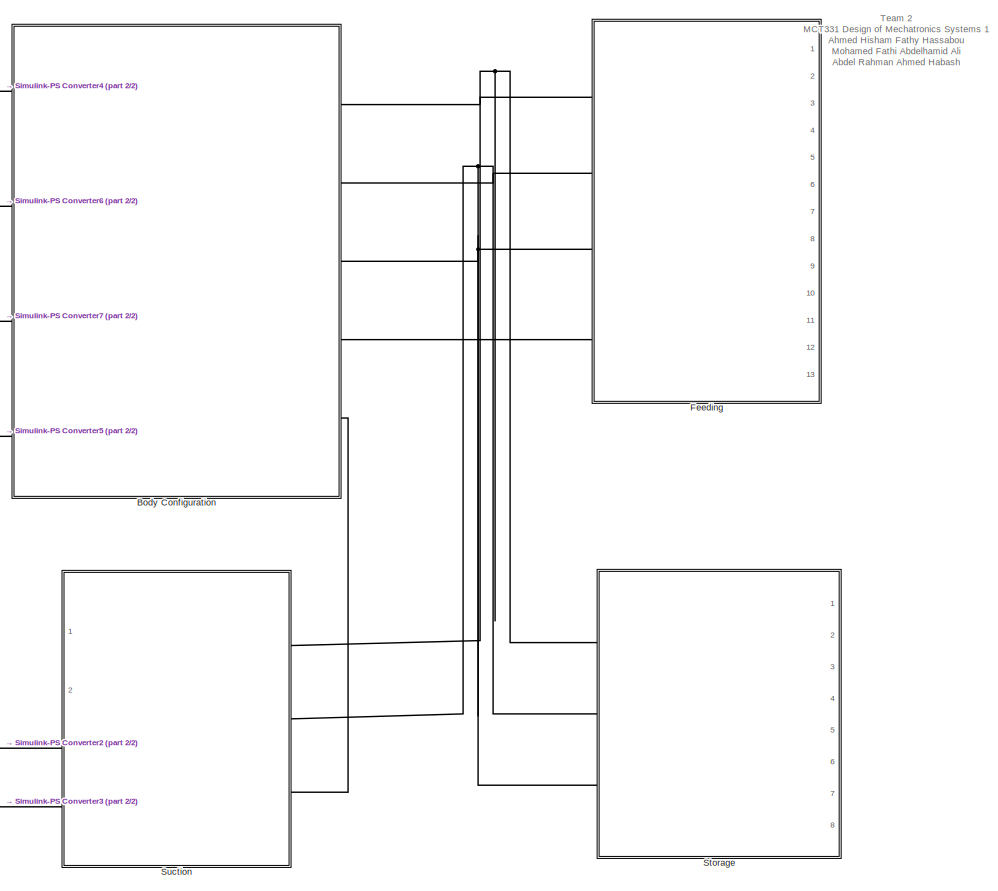
[diagram: root canvas - part 1/2, right side, full height]
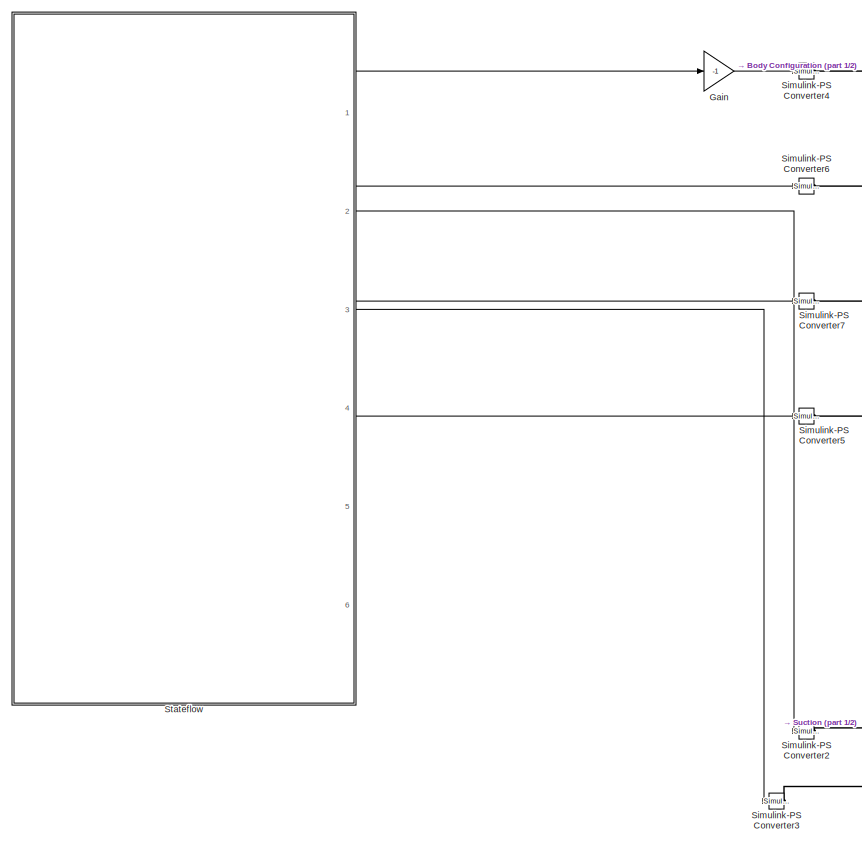
[diagram: root canvas - part 2/2, left side, full height]
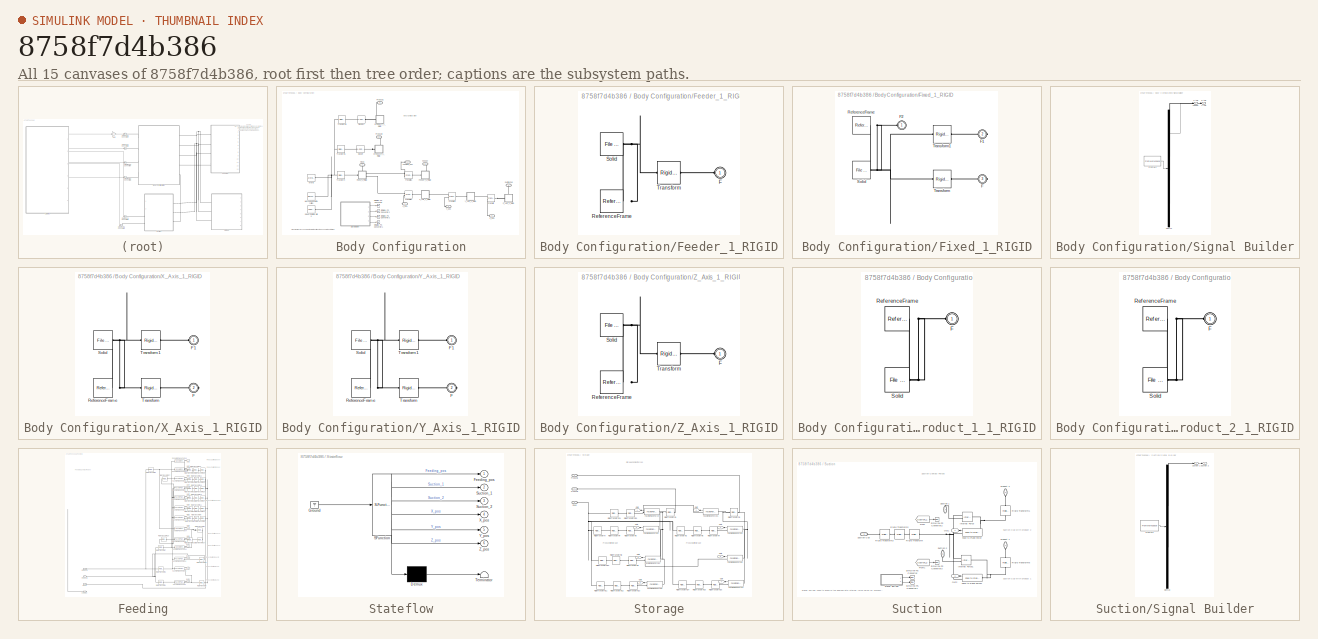
[diagram: thumbnail index - all 15 canvases of the model, root first then tree order]
MODEL slx_8758f7d4b386
KIND model
CONFIG AbsTol = auto
CONFIG EnableMultiTasking = off
CONFIG FixedStep = 0.01
CONFIG MaxStep = auto
CONFIG MinStep = auto
CONFIG RelTol = 1e-3
CONFIG SampleTimeConstraint = Unconstrained
CONFIG SolverName = ode23t
CONFIG StartTime = 0.0
CONFIG StopTime = 60
WORKSPACE source: external: MATLAB File  (data not in archive)
BLOCK [SubSystem] Body Configuration
  Ports = [0, 0, 0, 0, 0, 4, 5]
  RequestExecContextInheritance = off
BLOCK [PMIOPort] Body Configuration/Feeder
  Port = 8
  Side = Right
BLOCK [SubSystem] Body Configuration/Feeder_1_RIGID
  Ports = [0, 0, 0, 0, 0, 1]
  RequestExecContextInheritance = off
BLOCK [PMIOPort] Body Configuration/Feeder_1_RIGID/F
  Side = Left
BLOCK [Reference] Body Configuration/Feeder_1_RIGID/ReferenceFrame  REF=sm_lib/Frames and
Transforms/Reference
Frame
  Ports = [0, 0, 0, 0, 0, 0, 1]
  SourceBlock = sm_lib/Frames and\nTransforms/Reference\nFrame
  SourceProductBaseCode = MS
  SourceType = Reference\nFrame
BLOCK [Reference] Body Configuration/Feeder_1_RIGID/Solid  REF=sm_lib/Body Elements/File Solid
  Ports = [0, 0, 0, 0, 0, 0, 1]
  SourceBlock = sm_lib/Body Elements/File Solid
  SourceProductBaseCode = MS
  SourceType = File Solid
BLOCK [Reference] Body Configuration/Feeder_1_RIGID/Transform  REF=sm_lib/Frames and
Transforms/Rigid
Transform
  Ports = [0, 0, 0, 0, 0, 1, 1]
  SourceBlock = sm_lib/Frames and\nTransforms/Rigid\nTransform
  SourceProductBaseCode = MS
  SourceType = Rigid\nTransform
BLOCK [PMIOPort] Body Configuration/Feeding_pos
  Side = Left
BLOCK [PMIOPort] Body Configuration/Fixed
  Port = 7
  Side = Right
BLOCK [SubSystem] Body Configuration/Fixed_1_RIGID
  Ports = [0, 0, 0, 0, 0, 1, 2]
  RequestExecContextInheritance = off
BLOCK [PMIOPort] Body Configuration/Fixed_1_RIGID/F
  Port = 3
  Side = Right
BLOCK [PMIOPort] Body Configuration/Fixed_1_RIGID/F1
  Port = 2
  Side = Right
BLOCK [PMIOPort] Body Configuration/Fixed_1_RIGID/F2
  Side = Left
BLOCK [Reference] Body Configuration/Fixed_1_RIGID/ReferenceFrame  REF=sm_lib/Frames and
Transforms/Reference
Frame
  Ports = [0, 0, 0, 0, 0, 0, 1]
  SourceBlock = sm_lib/Frames and\nTransforms/Reference\nFrame
  SourceProductBaseCode = MS
  SourceType = Reference\nFrame
BLOCK [Reference] Body Configuration/Fixed_1_RIGID/Solid  REF=sm_lib/Body Elements/File Solid
  Ports = [0, 0, 0, 0, 0, 0, 1]
  SourceBlock = sm_lib/Body Elements/File Solid
  SourceProductBaseCode = MS
  SourceType = File Solid
BLOCK [Reference] Body Configuration/Fixed_1_RIGID/Transform  REF=sm_lib/Frames and
Transforms/Rigid
Transform
  Ports = [0, 0, 0, 0, 0, 1, 1]
  SourceBlock = sm_lib/Frames and\nTransforms/Rigid\nTransform
  SourceProductBaseCode = MS
  SourceType = Rigid\nTransform
BLOCK [Reference] Body Configuration/Fixed_1_RIGID/Transform1  REF=sm_lib/Frames and
Transforms/Rigid
Transform
  Ports = [0, 0, 0, 0, 0, 1, 1]
  SourceBlock = sm_lib/Frames and\nTransforms/Rigid\nTransform
  SourceProductBaseCode = MS
  SourceType = Rigid\nTransform
BLOCK [Reference] Body Configuration/MechanismConfiguration  REF=sm_lib/Utilities/Mechanism
Configuration
  Ports = [0, 0, 0, 0, 0, 0, 1]
  SourceBlock = sm_lib/Utilities/Mechanism\nConfiguration
  SourceProductBaseCode = MS
  SourceType = Mechanism\nConfiguration
BLOCK [Reference] Body Configuration/Prismatic  REF=sm_lib/Joints/Prismatic
Joint
  Ports = [0, 0, 0, 0, 0, 2, 1]
  SourceBlock = sm_lib/Joints/Prismatic\nJoint
  SourceProductBaseCode = MS
  SourceType = Prismatic\nJoint
BLOCK [Reference] Body Configuration/Prismatic1  REF=sm_lib/Joints/Prismatic
Joint
  Ports = [0, 0, 0, 0, 0, 2, 1]
  SourceBlock = sm_lib/Joints/Prismatic\nJoint
  SourceProductBaseCode = MS
  SourceType = Prismatic\nJoint
BLOCK [Reference] Body Configuration/Prismatic2  REF=sm_lib/Joints/Prismatic
Joint
  Ports = [0, 0, 0, 0, 0, 2, 1]
  SourceBlock = sm_lib/Joints/Prismatic\nJoint
  SourceProductBaseCode = MS
  SourceType = Prismatic\nJoint
BLOCK [Reference] Body Configuration/Prismatic3  REF=sm_lib/Joints/Prismatic
Joint
  Ports = [0, 0, 0, 0, 0, 2, 1]
  SourceBlock = sm_lib/Joints/Prismatic\nJoint
  SourceProductBaseCode = MS
  SourceType = Prismatic\nJoint
BLOCK [PMIOPort] Body Configuration/Product 1
  Port = 5
  Side = Right
BLOCK [PMIOPort] Body Configuration/Product 2
  Port = 6
  Side = Right
BLOCK [SubSystem] Body Configuration/Signal Builder
  ClipboardFcn = sigbuilder_block('clipboard');
  CloseFcn = sigbuilder_block('close');
  Commented = on
  ContinueFcn = sigbuilder_block('continue');
  CopyFcn = sigbuilder_block('copy');
  DeleteFcn = sigbuilder_block('delete');
  LoadFcn = sigbuilder_block('load');
  MaskHideContents = on
  ModelCloseFcn = sigbuilder_block('modelClose');
  NameChangeFcn = sigbuilder_block('namechange');
  OpenFcn = sigbuilder_block('open',[571.8 36.6 574.8 510.6 ]);
  PauseFcn = sigbuilder_block('pause');
  Ports = [0, 4]
  PreSaveFcn = sigbuilder_block('preSave');
  RequestExecContextInheritance = off
  StartFcn = sigbuilder_block('start');
  StopFcn = sigbuilder_block('stop');
  Tag = STV Subsys
BLOCK [Demux] Body Configuration/Signal Builder/Demux
  DisplayOption = none
  Ports = [1, 4]
  Tag = STV Demux
BLOCK [Outport] Body Configuration/Signal Builder/Feeder
  Tag = STV Outport
BLOCK [FromWorkspace] Body Configuration/Signal Builder/FromWs
  Tag = STV FromWs
  VariableName = tuvar
BLOCK [Outport] Body Configuration/Signal Builder/X-Axis
  Port = 2
  Tag = STV Outport
BLOCK [Outport] Body Configuration/Signal Builder/Y-Axis
  Port = 3
  Tag = STV Outport
BLOCK [Outport] Body Configuration/Signal Builder/Z-Axis
  Port = 4
  Tag = STV Outport
BLOCK [Reference] Body Configuration/Simulink-PS Converter  REF=nesl_utility/Simulink-PS
Converter
  Commented = on
  Ports = [1, 0, 0, 0, 0, 0, 1]
  SourceBlock = nesl_utility/Simulink-PS\nConverter
  SourceProductBaseCode = PW,SS
  SourceType = Simulink-PS\nConverter
BLOCK [Reference] Body Configuration/Simulink-PS Converter1  REF=nesl_utility/Simulink-PS
Converter
  Commented = on
  Ports = [1, 0, 0, 0, 0, 0, 1]
  SourceBlock = nesl_utility/Simulink-PS\nConverter
  SourceProductBaseCode = PW,SS
  SourceType = Simulink-PS\nConverter
BLOCK [Reference] Body Configuration/Simulink-PS Converter2  REF=nesl_utility/Simulink-PS
Converter
  Commented = on
  Ports = [1, 0, 0, 0, 0, 0, 1]
  SourceBlock = nesl_utility/Simulink-PS\nConverter
  SourceProductBaseCode = PW,SS
  SourceType = Simulink-PS\nConverter
BLOCK [Reference] Body Configuration/Simulink-PS Converter3  REF=nesl_utility/Simulink-PS
Converter
  Commented = on
  Ports = [1, 0, 0, 0, 0, 0, 1]
  SourceBlock = nesl_utility/Simulink-PS\nConverter
  SourceProductBaseCode = PW,SS
  SourceType = Simulink-PS\nConverter
BLOCK [Reference] Body Configuration/SixDOF  REF=sm_lib/Joints/6-DOF Joint
  Ports = [0, 0, 0, 0, 0, 1, 1]
  SourceBlock = sm_lib/Joints/6-DOF Joint
  SourceProductBaseCode = MS
  SourceType = 6-DOF Joint
BLOCK [Reference] Body Configuration/SixDOF1  REF=sm_lib/Joints/6-DOF Joint
  Ports = [0, 0, 0, 0, 0, 1, 1]
  SourceBlock = sm_lib/Joints/6-DOF Joint
  SourceProductBaseCode = MS
  SourceType = 6-DOF Joint
BLOCK [Reference] Body Configuration/Solver Configuration  REF=nesl_utility/Solver
Configuration
  Ports = [0, 0, 0, 0, 0, 0, 1]
  SourceBlock = nesl_utility/Solver\nConfiguration
  SourceProductBaseCode = PW,SS
  SourceType = Solver\nConfiguration
BLOCK [PMIOPort] Body Configuration/Suction Cup
  Port = 9
  Side = Right
BLOCK [Reference] Body Configuration/Transform  REF=sm_lib/Frames and
Transforms/Rigid
Transform
  Ports = [0, 0, 0, 0, 0, 1, 1]
  SourceBlock = sm_lib/Frames and\nTransforms/Rigid\nTransform
  SourceProductBaseCode = MS
  SourceType = Rigid\nTransform
BLOCK [Reference] Body Configuration/Transform1  REF=sm_lib/Frames and
Transforms/Rigid
Transform
  Ports = [0, 0, 0, 0, 0, 1, 1]
  SourceBlock = sm_lib/Frames and\nTransforms/Rigid\nTransform
  SourceProductBaseCode = MS
  SourceType = Rigid\nTransform
BLOCK [Reference] Body Configuration/Transform2  REF=sm_lib/Frames and
Transforms/Rigid
Transform
  Ports = [0, 0, 0, 0, 0, 1, 1]
  SourceBlock = sm_lib/Frames and\nTransforms/Rigid\nTransform
  SourceProductBaseCode = MS
  SourceType = Rigid\nTransform
BLOCK [Reference] Body Configuration/World  REF=sm_lib/Frames and
Transforms/World Frame
  Ports = [0, 0, 0, 0, 0, 0, 1]
  SourceBlock = sm_lib/Frames and\nTransforms/World Frame
  SourceProductBaseCode = MS
  SourceType = World Frame
BLOCK [SubSystem] Body Configuration/X_Axis_1_RIGID
  Ports = [0, 0, 0, 0, 0, 1, 1]
  RequestExecContextInheritance = off
BLOCK [PMIOPort] Body Configuration/X_Axis_1_RIGID/F
  Port = 2
  Side = Right
BLOCK [PMIOPort] Body Configuration/X_Axis_1_RIGID/F1
  Side = Left
BLOCK [Reference] Body Configuration/X_Axis_1_RIGID/ReferenceFrame  REF=sm_lib/Frames and
Transforms/Reference
Frame
  Ports = [0, 0, 0, 0, 0, 0, 1]
  SourceBlock = sm_lib/Frames and\nTransforms/Reference\nFrame
  SourceProductBaseCode = MS
  SourceType = Reference\nFrame
BLOCK [Reference] Body Configuration/X_Axis_1_RIGID/Solid  REF=sm_lib/Body Elements/File Solid
  Ports = [0, 0, 0, 0, 0, 0, 1]
  SourceBlock = sm_lib/Body Elements/File Solid
  SourceProductBaseCode = MS
  SourceType = File Solid
BLOCK [Reference] Body Configuration/X_Axis_1_RIGID/Transform  REF=sm_lib/Frames and
Transforms/Rigid
Transform
  Ports = [0, 0, 0, 0, 0, 1, 1]
  SourceBlock = sm_lib/Frames and\nTransforms/Rigid\nTransform
  SourceProductBaseCode = MS
  SourceType = Rigid\nTransform
BLOCK [Reference] Body Configuration/X_Axis_1_RIGID/Transform1  REF=sm_lib/Frames and
Transforms/Rigid
Transform
  Ports = [0, 0, 0, 0, 0, 1, 1]
  SourceBlock = sm_lib/Frames and\nTransforms/Rigid\nTransform
  SourceProductBaseCode = MS
  SourceType = Rigid\nTransform
BLOCK [PMIOPort] Body Configuration/X_pos
  Port = 2
  Side = Left
BLOCK [SubSystem] Body Configuration/Y_Axis_1_RIGID
  Ports = [0, 0, 0, 0, 0, 1, 1]
  RequestExecContextInheritance = off
BLOCK [PMIOPort] Body Configuration/Y_Axis_1_RIGID/F
  Port = 2
  Side = Right
BLOCK [PMIOPort] Body Configuration/Y_Axis_1_RIGID/F1
  Side = Left
BLOCK [Reference] Body Configuration/Y_Axis_1_RIGID/ReferenceFrame  REF=sm_lib/Frames and
Transforms/Reference
Frame
  Ports = [0, 0, 0, 0, 0, 0, 1]
  SourceBlock = sm_lib/Frames and\nTransforms/Reference\nFrame
  SourceProductBaseCode = MS
  SourceType = Reference\nFrame
BLOCK [Reference] Body Configuration/Y_Axis_1_RIGID/Solid  REF=sm_lib/Body Elements/File Solid
  Ports = [0, 0, 0, 0, 0, 0, 1]
  SourceBlock = sm_lib/Body Elements/File Solid
  SourceProductBaseCode = MS
  SourceType = File Solid
BLOCK [Reference] Body Configuration/Y_Axis_1_RIGID/Transform  REF=sm_lib/Frames and
Transforms/Rigid
Transform
  Ports = [0, 0, 0, 0, 0, 1, 1]
  SourceBlock = sm_lib/Frames and\nTransforms/Rigid\nTransform
  SourceProductBaseCode = MS
  SourceType = Rigid\nTransform
BLOCK [Reference] Body Configuration/Y_Axis_1_RIGID/Transform1  REF=sm_lib/Frames and
Transforms/Rigid
Transform
  Ports = [0, 0, 0, 0, 0, 1, 1]
  SourceBlock = sm_lib/Frames and\nTransforms/Rigid\nTransform
  SourceProductBaseCode = MS
  SourceType = Rigid\nTransform
BLOCK [PMIOPort] Body Configuration/Y_pos
  Port = 3
  Side = Left
BLOCK [SubSystem] Body Configuration/Z_Axis_1_RIGID
  Ports = [0, 0, 0, 0, 0, 1]
  RequestExecContextInheritance = off
BLOCK [PMIOPort] Body Configuration/Z_Axis_1_RIGID/F
  Side = Left
BLOCK [Reference] Body Configuration/Z_Axis_1_RIGID/ReferenceFrame  REF=sm_lib/Frames and
Transforms/Reference
Frame
  Ports = [0, 0, 0, 0, 0, 0, 1]
  SourceBlock = sm_lib/Frames and\nTransforms/Reference\nFrame
  SourceProductBaseCode = MS
  SourceType = Reference\nFrame
BLOCK [Reference] Body Configuration/Z_Axis_1_RIGID/Solid  REF=sm_lib/Body Elements/File Solid
  Ports = [0, 0, 0, 0, 0, 0, 1]
  SourceBlock = sm_lib/Body Elements/File Solid
  SourceProductBaseCode = MS
  SourceType = File Solid
BLOCK [Reference] Body Configuration/Z_Axis_1_RIGID/Transform  REF=sm_lib/Frames and
Transforms/Rigid
Transform
  Ports = [0, 0, 0, 0, 0, 1, 1]
  SourceBlock = sm_lib/Frames and\nTransforms/Rigid\nTransform
  SourceProductBaseCode = MS
  SourceType = Rigid\nTransform
BLOCK [PMIOPort] Body Configuration/Z_pos
  Port = 4
  Side = Left
BLOCK [SubSystem] Body Configuration/product_1_1_RIGID
  Ports = [0, 0, 0, 0, 0, 1]
  RequestExecContextInheritance = off
BLOCK [PMIOPort] Body Configuration/product_1_1_RIGID/F
  Side = Left
BLOCK [Reference] Body Configuration/product_1_1_RIGID/ReferenceFrame  REF=sm_lib/Frames and
Transforms/Reference
Frame
  Ports = [0, 0, 0, 0, 0, 0, 1]
  SourceBlock = sm_lib/Frames and\nTransforms/Reference\nFrame
  SourceProductBaseCode = MS
  SourceType = Reference\nFrame
BLOCK [Reference] Body Configuration/product_1_1_RIGID/Solid  REF=sm_lib/Body Elements/File Solid
  Ports = [0, 0, 0, 0, 0, 0, 1]
  SourceBlock = sm_lib/Body Elements/File Solid
  SourceProductBaseCode = MS
  SourceType = File Solid
BLOCK [SubSystem] Body Configuration/product_2_1_RIGID
  Ports = [0, 0, 0, 0, 0, 1]
  RequestExecContextInheritance = off
BLOCK [PMIOPort] Body Configuration/product_2_1_RIGID/F
  Side = Left
BLOCK [Reference] Body Configuration/product_2_1_RIGID/ReferenceFrame  REF=sm_lib/Frames and
Transforms/Reference
Frame
  Ports = [0, 0, 0, 0, 0, 0, 1]
  SourceBlock = sm_lib/Frames and\nTransforms/Reference\nFrame
  SourceProductBaseCode = MS
  SourceType = Reference\nFrame
BLOCK [Reference] Body Configuration/product_2_1_RIGID/Solid  REF=sm_lib/Body Elements/File Solid
  Ports = [0, 0, 0, 0, 0, 0, 1]
  SourceBlock = sm_lib/Body Elements/File Solid
  SourceProductBaseCode = MS
  SourceType = File Solid
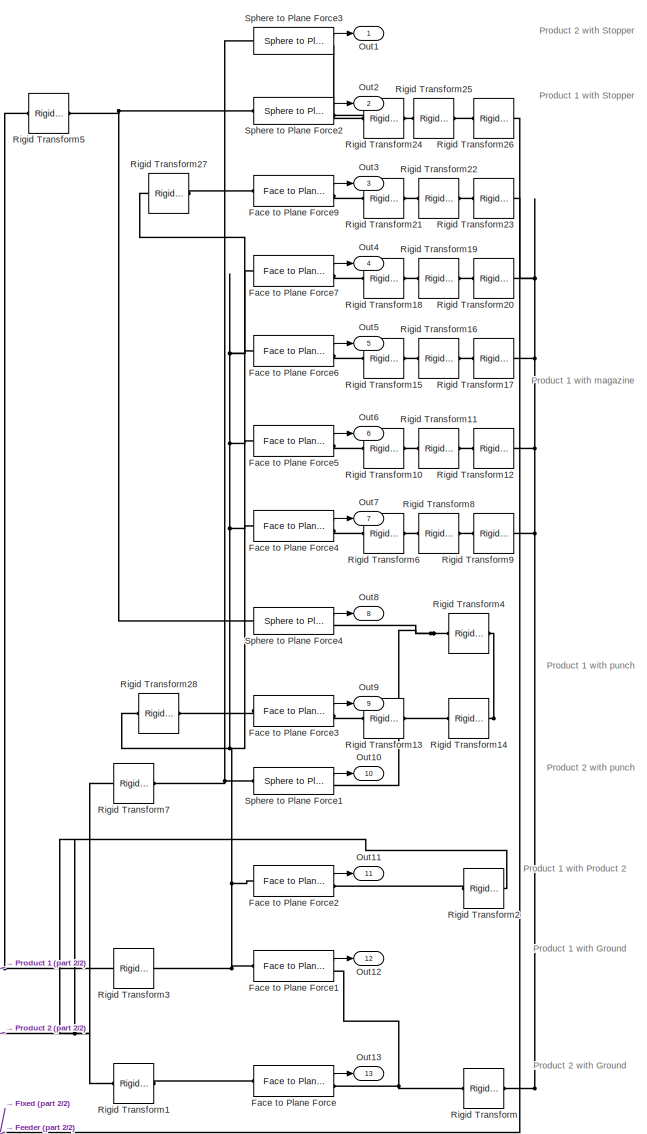
[diagram: Feeding - part 1/2, right side, full height]
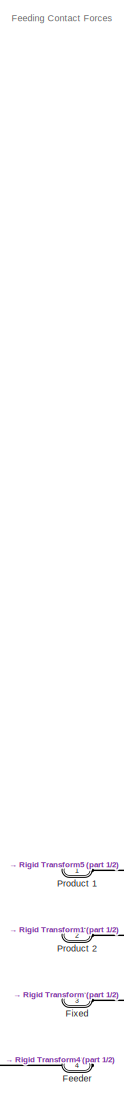
[diagram: Feeding - part 2/2, left side, full height]
BLOCK [SubSystem] Feeding
  Ports = [0, 13, 0, 0, 0, 4]
  RequestExecContextInheritance = off
BLOCK [Reference] Feeding/Face to Plane Force  REF=Contact_Forces_Lib/3D/Composite
Forces/Face to Plane Force
  Ports = [0, 1, 0, 0, 0, 1, 1]
  SourceBlock = Contact_Forces_Lib/3D/Composite\nForces/Face to Plane Force
  SourceProductName = Simscape Multibody Contact Forces Library
  SourceType = Face to Plane Force
BLOCK [Reference] Feeding/Face to Plane Force1  REF=Contact_Forces_Lib/3D/Composite
Forces/Face to Plane Force
  Ports = [0, 1, 0, 0, 0, 1, 1]
  SourceBlock = Contact_Forces_Lib/3D/Composite\nForces/Face to Plane Force
  SourceProductName = Simscape Multibody Contact Forces Library
  SourceType = Face to Plane Force
BLOCK [Reference] Feeding/Face to Plane Force2  REF=Contact_Forces_Lib/3D/Composite
Forces/Face to Plane Force
  Ports = [0, 1, 0, 0, 0, 1, 1]
  SourceBlock = Contact_Forces_Lib/3D/Composite\nForces/Face to Plane Force
  SourceProductName = Simscape Multibody Contact Forces Library
  SourceType = Face to Plane Force
BLOCK [Reference] Feeding/Face to Plane Force3  REF=Contact_Forces_Lib/3D/Composite
Forces/Face to Plane Force
  Ports = [0, 1, 0, 0, 0, 1, 1]
  SourceBlock = Contact_Forces_Lib/3D/Composite\nForces/Face to Plane Force
  SourceProductName = Simscape Multibody Contact Forces Library
  SourceType = Face to Plane Force
BLOCK [Reference] Feeding/Face to Plane Force4  REF=Contact_Forces_Lib/3D/Composite
Forces/Face to Plane Force
  Ports = [0, 1, 0, 0, 0, 1, 1]
  SourceBlock = Contact_Forces_Lib/3D/Composite\nForces/Face to Plane Force
  SourceProductName = Simscape Multibody Contact Forces Library
  SourceType = Face to Plane Force
BLOCK [Reference] Feeding/Face to Plane Force5  REF=Contact_Forces_Lib/3D/Composite
Forces/Face to Plane Force
  Ports = [0, 1, 0, 0, 0, 1, 1]
  SourceBlock = Contact_Forces_Lib/3D/Composite\nForces/Face to Plane Force
  SourceProductName = Simscape Multibody Contact Forces Library
  SourceType = Face to Plane Force
BLOCK [Reference] Feeding/Face to Plane Force6  REF=Contact_Forces_Lib/3D/Composite
Forces/Face to Plane Force
  Ports = [0, 1, 0, 0, 0, 1, 1]
  SourceBlock = Contact_Forces_Lib/3D/Composite\nForces/Face to Plane Force
  SourceProductName = Simscape Multibody Contact Forces Library
  SourceType = Face to Plane Force
BLOCK [Reference] Feeding/Face to Plane Force7  REF=Contact_Forces_Lib/3D/Composite
Forces/Face to Plane Force
  Ports = [0, 1, 0, 0, 0, 1, 1]
  SourceBlock = Contact_Forces_Lib/3D/Composite\nForces/Face to Plane Force
  SourceProductName = Simscape Multibody Contact Forces Library
  SourceType = Face to Plane Force
BLOCK [Reference] Feeding/Face to Plane Force9  REF=Contact_Forces_Lib/3D/Composite
Forces/Face to Plane Force
  Ports = [0, 1, 0, 0, 0, 1, 1]
  SourceBlock = Contact_Forces_Lib/3D/Composite\nForces/Face to Plane Force
  SourceProductName = Simscape Multibody Contact Forces Library
  SourceType = Face to Plane Force
BLOCK [PMIOPort] Feeding/Feeder
  Port = 4
  Side = Left
BLOCK [PMIOPort] Feeding/Fixed
  Port = 3
  Side = Left
BLOCK [Outport] Feeding/Out1
BLOCK [Outport] Feeding/Out10
  Port = 10
BLOCK [Outport] Feeding/Out11
  Port = 11
BLOCK [Outport] Feeding/Out12
  Port = 12
BLOCK [Outport] Feeding/Out13
  Port = 13
BLOCK [Outport] Feeding/Out2
  Port = 2
BLOCK [Outport] Feeding/Out3
  Port = 3
BLOCK [Outport] Feeding/Out4
  Port = 4
BLOCK [Outport] Feeding/Out5
  Port = 5
BLOCK [Outport] Feeding/Out6
  Port = 6
BLOCK [Outport] Feeding/Out7
  Port = 7
BLOCK [Outport] Feeding/Out8
  Port = 8
BLOCK [Outport] Feeding/Out9
  Port = 9
BLOCK [PMIOPort] Feeding/Product 1
  Side = Left
BLOCK [PMIOPort] Feeding/Product 2
  Port = 2
  Side = Left
BLOCK [Reference] Feeding/Rigid Transform  REF=sm_lib/Frames and
Transforms/Rigid
Transform
  Ports = [0, 0, 0, 0, 0, 1, 1]
  SourceBlock = sm_lib/Frames and\nTransforms/Rigid\nTransform
  SourceProductBaseCode = MS
  SourceType = Rigid\nTransform
BLOCK [Reference] Feeding/Rigid Transform1  REF=sm_lib/Frames and
Transforms/Rigid
Transform
  Ports = [0, 0, 0, 0, 0, 1, 1]
  SourceBlock = sm_lib/Frames and\nTransforms/Rigid\nTransform
  SourceProductBaseCode = MS
  SourceType = Rigid\nTransform
BLOCK [Reference] Feeding/Rigid Transform10  REF=sm_lib/Frames and
Transforms/Rigid
Transform
  Ports = [0, 0, 0, 0, 0, 1, 1]
  SourceBlock = sm_lib/Frames and\nTransforms/Rigid\nTransform
  SourceProductBaseCode = MS
  SourceType = Rigid\nTransform
BLOCK [Reference] Feeding/Rigid Transform11  REF=sm_lib/Frames and
Transforms/Rigid
Transform
  Ports = [0, 0, 0, 0, 0, 1, 1]
  SourceBlock = sm_lib/Frames and\nTransforms/Rigid\nTransform
  SourceProductBaseCode = MS
  SourceType = Rigid\nTransform
BLOCK [Reference] Feeding/Rigid Transform12  REF=sm_lib/Frames and
Transforms/Rigid
Transform
  Ports = [0, 0, 0, 0, 0, 1, 1]
  SourceBlock = sm_lib/Frames and\nTransforms/Rigid\nTransform
  SourceProductBaseCode = MS
  SourceType = Rigid\nTransform
BLOCK [Reference] Feeding/Rigid Transform13  REF=sm_lib/Frames and
Transforms/Rigid
Transform
  Ports = [0, 0, 0, 0, 0, 1, 1]
  SourceBlock = sm_lib/Frames and\nTransforms/Rigid\nTransform
  SourceProductBaseCode = MS
  SourceType = Rigid\nTransform
BLOCK [Reference] Feeding/Rigid Transform14  REF=sm_lib/Frames and
Transforms/Rigid
Transform
  Ports = [0, 0, 0, 0, 0, 1, 1]
  SourceBlock = sm_lib/Frames and\nTransforms/Rigid\nTransform
  SourceProductBaseCode = MS
  SourceType = Rigid\nTransform
BLOCK [Reference] Feeding/Rigid Transform15  REF=sm_lib/Frames and
Transforms/Rigid
Transform
  Ports = [0, 0, 0, 0, 0, 1, 1]
  SourceBlock = sm_lib/Frames and\nTransforms/Rigid\nTransform
  SourceProductBaseCode = MS
  SourceType = Rigid\nTransform
BLOCK [Reference] Feeding/Rigid Transform16  REF=sm_lib/Frames and
Transforms/Rigid
Transform
  Ports = [0, 0, 0, 0, 0, 1, 1]
  SourceBlock = sm_lib/Frames and\nTransforms/Rigid\nTransform
  SourceProductBaseCode = MS
  SourceType = Rigid\nTransform
BLOCK [Reference] Feeding/Rigid Transform17  REF=sm_lib/Frames and
Transforms/Rigid
Transform
  Ports = [0, 0, 0, 0, 0, 1, 1]
  SourceBlock = sm_lib/Frames and\nTransforms/Rigid\nTransform
  SourceProductBaseCode = MS
  SourceType = Rigid\nTransform
BLOCK [Reference] Feeding/Rigid Transform18  REF=sm_lib/Frames and
Transforms/Rigid
Transform
  Ports = [0, 0, 0, 0, 0, 1, 1]
  SourceBlock = sm_lib/Frames and\nTransforms/Rigid\nTransform
  SourceProductBaseCode = MS
  SourceType = Rigid\nTransform
BLOCK [Reference] Feeding/Rigid Transform19  REF=sm_lib/Frames and
Transforms/Rigid
Transform
  Ports = [0, 0, 0, 0, 0, 1, 1]
  SourceBlock = sm_lib/Frames and\nTransforms/Rigid\nTransform
  SourceProductBaseCode = MS
  SourceType = Rigid\nTransform
BLOCK [Reference] Feeding/Rigid Transform2  REF=sm_lib/Frames and
Transforms/Rigid
Transform
  Ports = [0, 0, 0, 0, 0, 1, 1]
  SourceBlock = sm_lib/Frames and\nTransforms/Rigid\nTransform
  SourceProductBaseCode = MS
  SourceType = Rigid\nTransform
BLOCK [Reference] Feeding/Rigid Transform20  REF=sm_lib/Frames and
Transforms/Rigid
Transform
  Ports = [0, 0, 0, 0, 0, 1, 1]
  SourceBlock = sm_lib/Frames and\nTransforms/Rigid\nTransform
  SourceProductBaseCode = MS
  SourceType = Rigid\nTransform
BLOCK [Reference] Feeding/Rigid Transform21  REF=sm_lib/Frames and
Transforms/Rigid
Transform
  Ports = [0, 0, 0, 0, 0, 1, 1]
  SourceBlock = sm_lib/Frames and\nTransforms/Rigid\nTransform
  SourceProductBaseCode = MS
  SourceType = Rigid\nTransform
BLOCK [Reference] Feeding/Rigid Transform22  REF=sm_lib/Frames and
Transforms/Rigid
Transform
  Ports = [0, 0, 0, 0, 0, 1, 1]
  SourceBlock = sm_lib/Frames and\nTransforms/Rigid\nTransform
  SourceProductBaseCode = MS
  SourceType = Rigid\nTransform
BLOCK [Reference] Feeding/Rigid Transform23  REF=sm_lib/Frames and
Transforms/Rigid
Transform
  Ports = [0, 0, 0, 0, 0, 1, 1]
  SourceBlock = sm_lib/Frames and\nTransforms/Rigid\nTransform
  SourceProductBaseCode = MS
  SourceType = Rigid\nTransform
BLOCK [Reference] Feeding/Rigid Transform24  REF=sm_lib/Frames and
Transforms/Rigid
Transform
  Ports = [0, 0, 0, 0, 0, 1, 1]
  SourceBlock = sm_lib/Frames and\nTransforms/Rigid\nTransform
  SourceProductBaseCode = MS
  SourceType = Rigid\nTransform
BLOCK [Reference] Feeding/Rigid Transform25  REF=sm_lib/Frames and
Transforms/Rigid
Transform
  Ports = [0, 0, 0, 0, 0, 1, 1]
  SourceBlock = sm_lib/Frames and\nTransforms/Rigid\nTransform
  SourceProductBaseCode = MS
  SourceType = Rigid\nTransform
BLOCK [Reference] Feeding/Rigid Transform26  REF=sm_lib/Frames and
Transforms/Rigid
Transform
  Ports = [0, 0, 0, 0, 0, 1, 1]
  SourceBlock = sm_lib/Frames and\nTransforms/Rigid\nTransform
  SourceProductBaseCode = MS
  SourceType = Rigid\nTransform
BLOCK [Reference] Feeding/Rigid Transform27  REF=sm_lib/Frames and
Transforms/Rigid
Transform
  Ports = [0, 0, 0, 0, 0, 1, 1]
  SourceBlock = sm_lib/Frames and\nTransforms/Rigid\nTransform
  SourceProductBaseCode = MS
  SourceType = Rigid\nTransform
BLOCK [Reference] Feeding/Rigid Transform28  REF=sm_lib/Frames and
Transforms/Rigid
Transform
  Ports = [0, 0, 0, 0, 0, 1, 1]
  SourceBlock = sm_lib/Frames and\nTransforms/Rigid\nTransform
  SourceProductBaseCode = MS
  SourceType = Rigid\nTransform
BLOCK [Reference] Feeding/Rigid Transform3  REF=sm_lib/Frames and
Transforms/Rigid
Transform
  Ports = [0, 0, 0, 0, 0, 1, 1]
  SourceBlock = sm_lib/Frames and\nTransforms/Rigid\nTransform
  SourceProductBaseCode = MS
  SourceType = Rigid\nTransform
BLOCK [Reference] Feeding/Rigid Transform4  REF=sm_lib/Frames and
Transforms/Rigid
Transform
  Ports = [0, 0, 0, 0, 0, 1, 1]
  SourceBlock = sm_lib/Frames and\nTransforms/Rigid\nTransform
  SourceProductBaseCode = MS
  SourceType = Rigid\nTransform
BLOCK [Reference] Feeding/Rigid Transform5  REF=sm_lib/Frames and
Transforms/Rigid
Transform
  Ports = [0, 0, 0, 0, 0, 1, 1]
  SourceBlock = sm_lib/Frames and\nTransforms/Rigid\nTransform
  SourceProductBaseCode = MS
  SourceType = Rigid\nTransform
BLOCK [Reference] Feeding/Rigid Transform6  REF=sm_lib/Frames and
Transforms/Rigid
Transform
  Ports = [0, 0, 0, 0, 0, 1, 1]
  SourceBlock = sm_lib/Frames and\nTransforms/Rigid\nTransform
  SourceProductBaseCode = MS
  SourceType = Rigid\nTransform
BLOCK [Reference] Feeding/Rigid Transform7  REF=sm_lib/Frames and
Transforms/Rigid
Transform
  Ports = [0, 0, 0, 0, 0, 1, 1]
  SourceBlock = sm_lib/Frames and\nTransforms/Rigid\nTransform
  SourceProductBaseCode = MS
  SourceType = Rigid\nTransform
BLOCK [Reference] Feeding/Rigid Transform8  REF=sm_lib/Frames and
Transforms/Rigid
Transform
  Ports = [0, 0, 0, 0, 0, 1, 1]
  SourceBlock = sm_lib/Frames and\nTransforms/Rigid\nTransform
  SourceProductBaseCode = MS
  SourceType = Rigid\nTransform
BLOCK [Reference] Feeding/Rigid Transform9  REF=sm_lib/Frames and
Transforms/Rigid
Transform
  Ports = [0, 0, 0, 0, 0, 1, 1]
  SourceBlock = sm_lib/Frames and\nTransforms/Rigid\nTransform
  SourceProductBaseCode = MS
  SourceType = Rigid\nTransform
BLOCK [Reference] Feeding/Sphere to Plane Force1  REF=Contact_Forces_Lib/3D/Sphere to Plane Force
  Ports = [0, 1, 0, 0, 0, 1, 1]
  SourceBlock = Contact_Forces_Lib/3D/Sphere to Plane Force
  SourceProductName = Simscape Multibody Contact Forces Library
  SourceType = Sphere to Plane Force
BLOCK [Reference] Feeding/Sphere to Plane Force2  REF=Contact_Forces_Lib/3D/Sphere to Plane Force
  Ports = [0, 1, 0, 0, 0, 1, 1]
  SourceBlock = Contact_Forces_Lib/3D/Sphere to Plane Force
  SourceProductName = Simscape Multibody Contact Forces Library
  SourceType = Sphere to Plane Force
BLOCK [Reference] Feeding/Sphere to Plane Force3  REF=Contact_Forces_Lib/3D/Sphere to Plane Force
  Ports = [0, 1, 0, 0, 0, 1, 1]
  SourceBlock = Contact_Forces_Lib/3D/Sphere to Plane Force
  SourceProductName = Simscape Multibody Contact Forces Library
  SourceType = Sphere to Plane Force
BLOCK [Reference] Feeding/Sphere to Plane Force4  REF=Contact_Forces_Lib/3D/Sphere to Plane Force
  Ports = [0, 1, 0, 0, 0, 1, 1]
  SourceBlock = Contact_Forces_Lib/3D/Sphere to Plane Force
  SourceProductName = Simscape Multibody Contact Forces Library
  SourceType = Sphere to Plane Force
BLOCK [Gain] Gain
  Gain = -1
BLOCK [Reference] Simulink-PS Converter2  REF=nesl_utility/Simulink-PS
Converter
  Ports = [1, 0, 0, 0, 0, 0, 1]
  SourceBlock = nesl_utility/Simulink-PS\nConverter
  SourceProductBaseCode = PW,SS
  SourceType = Simulink-PS\nConverter
BLOCK [Reference] Simulink-PS Converter3  REF=nesl_utility/Simulink-PS
Converter
  Ports = [1, 0, 0, 0, 0, 0, 1]
  SourceBlock = nesl_utility/Simulink-PS\nConverter
  SourceProductBaseCode = PW,SS
  SourceType = Simulink-PS\nConverter
BLOCK [Reference] Simulink-PS Converter4  REF=nesl_utility/Simulink-PS
Converter
  Ports = [1, 0, 0, 0, 0, 0, 1]
  SourceBlock = nesl_utility/Simulink-PS\nConverter
  SourceProductBaseCode = PW,SS
  SourceType = Simulink-PS\nConverter
BLOCK [Reference] Simulink-PS Converter5  REF=nesl_utility/Simulink-PS
Converter
  Ports = [1, 0, 0, 0, 0, 0, 1]
  SourceBlock = nesl_utility/Simulink-PS\nConverter
  SourceProductBaseCode = PW,SS
  SourceType = Simulink-PS\nConverter
BLOCK [Reference] Simulink-PS Converter6  REF=nesl_utility/Simulink-PS
Converter
  Ports = [1, 0, 0, 0, 0, 0, 1]
  SourceBlock = nesl_utility/Simulink-PS\nConverter
  SourceProductBaseCode = PW,SS
  SourceType = Simulink-PS\nConverter
BLOCK [Reference] Simulink-PS Converter7  REF=nesl_utility/Simulink-PS
Converter
  Ports = [1, 0, 0, 0, 0, 0, 1]
  SourceBlock = nesl_utility/Simulink-PS\nConverter
  SourceProductBaseCode = PW,SS
  SourceType = Simulink-PS\nConverter
BLOCK [SubSystem] Stateflow
  ErrorFcn = Stateflow.Translate.translate
  PermitHierarchicalResolution = ExplicitOnly
  PortSchema = {"entries":[{"content":{"sides":[{"content":{"connectorIds":[]},"type":"ConnectorPlacement.EquallySpacedRectSide","uuid":"11e057d8-b98a-40fc-aa5b-a3e2f1141f71"},{"content":{"connectorIds":["Out1","Out4","Out5","Out6","Out2","Out3"],"side":"RIGHT"},"type":"ConnectorPlacement.EquallySpacedRectSide","uuid":"9ecd4d85-6e3e-41f9-b128-04d4f7efdb7d"},{"content":{"connectorIds":[],"side":"TOP"},"type":"Con...<+270ch>
  Ports = [0, 6]
  RequestExecContextInheritance = off
  SFBlockType = Chart
  TreatAsAtomicUnit = on
BLOCK [Demux] Stateflow/ Demux 
  Outputs = 1
  Ports = [1, 1]
BLOCK [Ground] Stateflow/ Ground 
BLOCK [S-Function] Stateflow/ SFunction 
  EnableBusSupport = on
  FunctionName = sf_sfun
  PortCounts = [1 7]
  Ports = [1, 7]
  SFcnIsStateOwnerBlock = off
  SFunctionDeploymentMode = off
  Tag = Stateflow S-Function 3
BLOCK [Terminator] Stateflow/ Terminator 
BLOCK [Outport] Stateflow/Feeding_pos
BLOCK [Outport] Stateflow/Suction_1
  Port = 2
BLOCK [Outport] Stateflow/Suction_2
  Port = 3
BLOCK [Outport] Stateflow/X_pos
  Port = 4
BLOCK [Outport] Stateflow/Y_pos
  Port = 5
BLOCK [Outport] Stateflow/Z_pos
  Port = 6
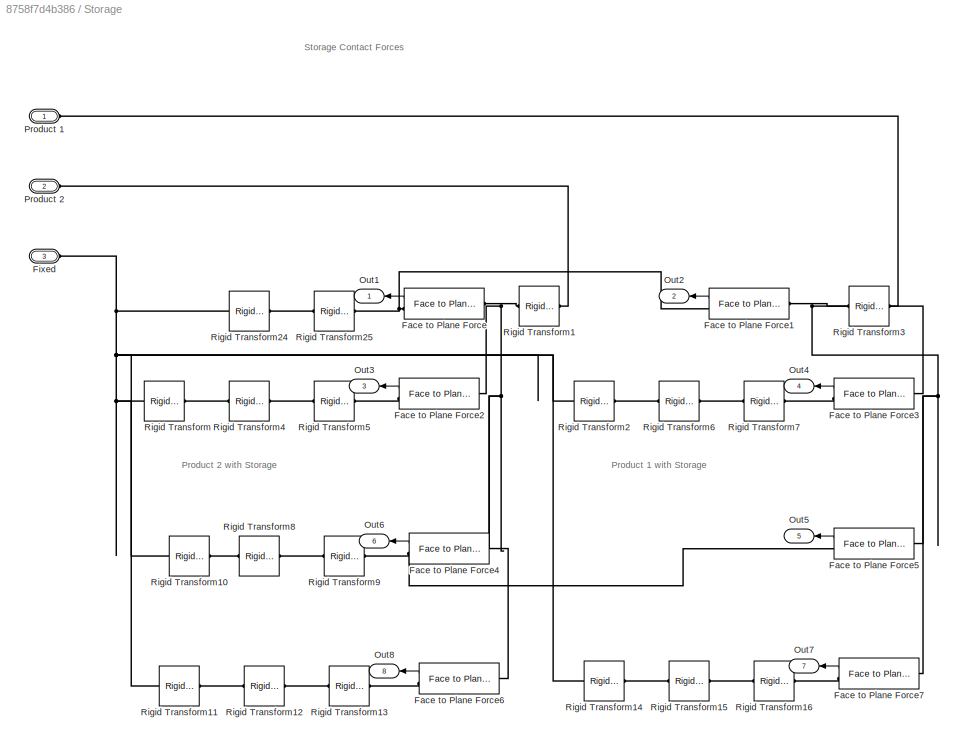
BLOCK [SubSystem] Storage
  Ports = [0, 8, 0, 0, 0, 3]
  RequestExecContextInheritance = off
BLOCK [Reference] Storage/Face to Plane Force  REF=Contact_Forces_Lib/3D/Composite
Forces/Face to Plane Force
  Ports = [0, 1, 0, 0, 0, 1, 1]
  SourceBlock = Contact_Forces_Lib/3D/Composite\nForces/Face to Plane Force
  SourceProductName = Simscape Multibody Contact Forces Library
  SourceType = Face to Plane Force
BLOCK [Reference] Storage/Face to Plane Force1  REF=Contact_Forces_Lib/3D/Composite
Forces/Face to Plane Force
  Ports = [0, 1, 0, 0, 0, 1, 1]
  SourceBlock = Contact_Forces_Lib/3D/Composite\nForces/Face to Plane Force
  SourceProductName = Simscape Multibody Contact Forces Library
  SourceType = Face to Plane Force
BLOCK [Reference] Storage/Face to Plane Force2  REF=Contact_Forces_Lib/3D/Composite
Forces/Face to Plane Force
  Ports = [0, 1, 0, 0, 0, 1, 1]
  SourceBlock = Contact_Forces_Lib/3D/Composite\nForces/Face to Plane Force
  SourceProductName = Simscape Multibody Contact Forces Library
  SourceType = Face to Plane Force
BLOCK [Reference] Storage/Face to Plane Force3  REF=Contact_Forces_Lib/3D/Composite
Forces/Face to Plane Force
  Ports = [0, 1, 0, 0, 0, 1, 1]
  SourceBlock = Contact_Forces_Lib/3D/Composite\nForces/Face to Plane Force
  SourceProductName = Simscape Multibody Contact Forces Library
  SourceType = Face to Plane Force
BLOCK [Reference] Storage/Face to Plane Force4  REF=Contact_Forces_Lib/3D/Composite
Forces/Face to Plane Force
  Ports = [0, 1, 0, 0, 0, 1, 1]
  SourceBlock = Contact_Forces_Lib/3D/Composite\nForces/Face to Plane Force
  SourceProductName = Simscape Multibody Contact Forces Library
  SourceType = Face to Plane Force
BLOCK [Reference] Storage/Face to Plane Force5  REF=Contact_Forces_Lib/3D/Composite
Forces/Face to Plane Force
  Ports = [0, 1, 0, 0, 0, 1, 1]
  SourceBlock = Contact_Forces_Lib/3D/Composite\nForces/Face to Plane Force
  SourceProductName = Simscape Multibody Contact Forces Library
  SourceType = Face to Plane Force
BLOCK [Reference] Storage/Face to Plane Force6  REF=Contact_Forces_Lib/3D/Composite
Forces/Face to Plane Force
  Ports = [0, 1, 0, 0, 0, 1, 1]
  SourceBlock = Contact_Forces_Lib/3D/Composite\nForces/Face to Plane Force
  SourceProductName = Simscape Multibody Contact Forces Library
  SourceType = Face to Plane Force
BLOCK [Reference] Storage/Face to Plane Force7  REF=Contact_Forces_Lib/3D/Composite
Forces/Face to Plane Force
  Ports = [0, 1, 0, 0, 0, 1, 1]
  SourceBlock = Contact_Forces_Lib/3D/Composite\nForces/Face to Plane Force
  SourceProductName = Simscape Multibody Contact Forces Library
  SourceType = Face to Plane Force
BLOCK [PMIOPort] Storage/Fixed
  Port = 3
  Side = Left
BLOCK [Outport] Storage/Out1
BLOCK [Outport] Storage/Out2
  Port = 2
BLOCK [Outport] Storage/Out3
  Port = 3
BLOCK [Outport] Storage/Out4
  Port = 4
BLOCK [Outport] Storage/Out5
  Port = 5
BLOCK [Outport] Storage/Out6
  Port = 6
BLOCK [Outport] Storage/Out7
  Port = 7
BLOCK [Outport] Storage/Out8
  Port = 8
BLOCK [PMIOPort] Storage/Product 1
  Side = Left
BLOCK [PMIOPort] Storage/Product 2
  Port = 2
  Side = Left
BLOCK [Reference] Storage/Rigid Transform  REF=sm_lib/Frames and
Transforms/Rigid
Transform
  Ports = [0, 0, 0, 0, 0, 1, 1]
  SourceBlock = sm_lib/Frames and\nTransforms/Rigid\nTransform
  SourceProductBaseCode = MS
  SourceType = Rigid\nTransform
BLOCK [Reference] Storage/Rigid Transform1  REF=sm_lib/Frames and
Transforms/Rigid
Transform
  Ports = [0, 0, 0, 0, 0, 1, 1]
  SourceBlock = sm_lib/Frames and\nTransforms/Rigid\nTransform
  SourceProductBaseCode = MS
  SourceType = Rigid\nTransform
BLOCK [Reference] Storage/Rigid Transform10  REF=sm_lib/Frames and
Transforms/Rigid
Transform
  Ports = [0, 0, 0, 0, 0, 1, 1]
  SourceBlock = sm_lib/Frames and\nTransforms/Rigid\nTransform
  SourceProductBaseCode = MS
  SourceType = Rigid\nTransform
BLOCK [Reference] Storage/Rigid Transform11  REF=sm_lib/Frames and
Transforms/Rigid
Transform
  Ports = [0, 0, 0, 0, 0, 1, 1]
  SourceBlock = sm_lib/Frames and\nTransforms/Rigid\nTransform
  SourceProductBaseCode = MS
  SourceType = Rigid\nTransform
BLOCK [Reference] Storage/Rigid Transform12  REF=sm_lib/Frames and
Transforms/Rigid
Transform
  Ports = [0, 0, 0, 0, 0, 1, 1]
  SourceBlock = sm_lib/Frames and\nTransforms/Rigid\nTransform
  SourceProductBaseCode = MS
  SourceType = Rigid\nTransform
BLOCK [Reference] Storage/Rigid Transform13  REF=sm_lib/Frames and
Transforms/Rigid
Transform
  Ports = [0, 0, 0, 0, 0, 1, 1]
  SourceBlock = sm_lib/Frames and\nTransforms/Rigid\nTransform
  SourceProductBaseCode = MS
  SourceType = Rigid\nTransform
BLOCK [Reference] Storage/Rigid Transform14  REF=sm_lib/Frames and
Transforms/Rigid
Transform
  Ports = [0, 0, 0, 0, 0, 1, 1]
  SourceBlock = sm_lib/Frames and\nTransforms/Rigid\nTransform
  SourceProductBaseCode = MS
  SourceType = Rigid\nTransform
BLOCK [Reference] Storage/Rigid Transform15  REF=sm_lib/Frames and
Transforms/Rigid
Transform
  Ports = [0, 0, 0, 0, 0, 1, 1]
  SourceBlock = sm_lib/Frames and\nTransforms/Rigid\nTransform
  SourceProductBaseCode = MS
  SourceType = Rigid\nTransform
BLOCK [Reference] Storage/Rigid Transform16  REF=sm_lib/Frames and
Transforms/Rigid
Transform
  Ports = [0, 0, 0, 0, 0, 1, 1]
  SourceBlock = sm_lib/Frames and\nTransforms/Rigid\nTransform
  SourceProductBaseCode = MS
  SourceType = Rigid\nTransform
BLOCK [Reference] Storage/Rigid Transform2  REF=sm_lib/Frames and
Transforms/Rigid
Transform
  Ports = [0, 0, 0, 0, 0, 1, 1]
  SourceBlock = sm_lib/Frames and\nTransforms/Rigid\nTransform
  SourceProductBaseCode = MS
  SourceType = Rigid\nTransform
BLOCK [Reference] Storage/Rigid Transform24  REF=sm_lib/Frames and
Transforms/Rigid
Transform
  Ports = [0, 0, 0, 0, 0, 1, 1]
  SourceBlock = sm_lib/Frames and\nTransforms/Rigid\nTransform
  SourceProductBaseCode = MS
  SourceType = Rigid\nTransform
BLOCK [Reference] Storage/Rigid Transform25  REF=sm_lib/Frames and
Transforms/Rigid
Transform
  Ports = [0, 0, 0, 0, 0, 1, 1]
  SourceBlock = sm_lib/Frames and\nTransforms/Rigid\nTransform
  SourceProductBaseCode = MS
  SourceType = Rigid\nTransform
BLOCK [Reference] Storage/Rigid Transform3  REF=sm_lib/Frames and
Transforms/Rigid
Transform
  Ports = [0, 0, 0, 0, 0, 1, 1]
  SourceBlock = sm_lib/Frames and\nTransforms/Rigid\nTransform
  SourceProductBaseCode = MS
  SourceType = Rigid\nTransform
BLOCK [Reference] Storage/Rigid Transform4  REF=sm_lib/Frames and
Transforms/Rigid
Transform
  Ports = [0, 0, 0, 0, 0, 1, 1]
  SourceBlock = sm_lib/Frames and\nTransforms/Rigid\nTransform
  SourceProductBaseCode = MS
  SourceType = Rigid\nTransform
BLOCK [Reference] Storage/Rigid Transform5  REF=sm_lib/Frames and
Transforms/Rigid
Transform
  Ports = [0, 0, 0, 0, 0, 1, 1]
  SourceBlock = sm_lib/Frames and\nTransforms/Rigid\nTransform
  SourceProductBaseCode = MS
  SourceType = Rigid\nTransform
BLOCK [Reference] Storage/Rigid Transform6  REF=sm_lib/Frames and
Transforms/Rigid
Transform
  Ports = [0, 0, 0, 0, 0, 1, 1]
  SourceBlock = sm_lib/Frames and\nTransforms/Rigid\nTransform
  SourceProductBaseCode = MS
  SourceType = Rigid\nTransform
BLOCK [Reference] Storage/Rigid Transform7  REF=sm_lib/Frames and
Transforms/Rigid
Transform
  Ports = [0, 0, 0, 0, 0, 1, 1]
  SourceBlock = sm_lib/Frames and\nTransforms/Rigid\nTransform
  SourceProductBaseCode = MS
  SourceType = Rigid\nTransform
BLOCK [Reference] Storage/Rigid Transform8  REF=sm_lib/Frames and
Transforms/Rigid
Transform
  Ports = [0, 0, 0, 0, 0, 1, 1]
  SourceBlock = sm_lib/Frames and\nTransforms/Rigid\nTransform
  SourceProductBaseCode = MS
  SourceType = Rigid\nTransform
BLOCK [Reference] Storage/Rigid Transform9  REF=sm_lib/Frames and
Transforms/Rigid
Transform
  Ports = [0, 0, 0, 0, 0, 1, 1]
  SourceBlock = sm_lib/Frames and\nTransforms/Rigid\nTransform
  SourceProductBaseCode = MS
  SourceType = Rigid\nTransform
BLOCK [SubSystem] Suction
  Ports = [0, 2, 0, 0, 0, 3, 2]
  RequestExecContextInheritance = off
BLOCK [Reference] Suction/Face to Plane Force  REF=Contact_Forces_Lib/3D/Composite
Forces/Face to Plane Force
  Ports = [0, 1, 0, 0, 0, 1, 1]
  SourceBlock = Contact_Forces_Lib/3D/Composite\nForces/Face to Plane Force
  SourceProductName = Simscape Multibody Contact Forces Library
  SourceType = Face to Plane Force
BLOCK [Reference] Suction/Face to Plane Force1  REF=Contact_Forces_Lib/3D/Composite
Forces/Face to Plane Force
  Ports = [0, 1, 0, 0, 0, 1, 1]
  SourceBlock = Contact_Forces_Lib/3D/Composite\nForces/Face to Plane Force
  SourceProductName = Simscape Multibody Contact Forces Library
  SourceType = Face to Plane Force
BLOCK [From] Suction/From
  Commented = on
  GotoTag = Suction_1
BLOCK [From] Suction/From1
  Commented = on
  GotoTag = Suction_2
BLOCK [Reference] Suction/Internal Force  REF=sm_lib/Forces and
Torques/Internal Force
  Ports = [0, 0, 0, 0, 0, 2, 1]
  SourceBlock = sm_lib/Forces and\nTorques/Internal Force
  SourceProductBaseCode = MS
  SourceType = Internal Force
BLOCK [Reference] Suction/Internal Force1  REF=sm_lib/Forces and
Torques/Internal Force
  Ports = [0, 0, 0, 0, 0, 2, 1]
  SourceBlock = sm_lib/Forces and\nTorques/Internal Force
  SourceProductBaseCode = MS
  SourceType = Internal Force
BLOCK [Outport] Suction/Out1
BLOCK [Outport] Suction/Out2
  Port = 2
BLOCK [PMIOPort] Suction/Product 1
  NameLocation = left
  Side = Left
BLOCK [PMIOPort] Suction/Product 2
  NameLocation = left
  Port = 2
  Side = Left
BLOCK [Reference] Suction/Rigid Transform  REF=sm_lib/Frames and
Transforms/Rigid
Transform
  Ports = [0, 0, 0, 0, 0, 1, 1]
  SourceBlock = sm_lib/Frames and\nTransforms/Rigid\nTransform
  SourceProductBaseCode = MS
  SourceType = Rigid\nTransform
BLOCK [Reference] Suction/Rigid Transform1  REF=sm_lib/Frames and
Transforms/Rigid
Transform
  NameLocation = left
  Ports = [0, 0, 0, 0, 0, 1, 1]
  SourceBlock = sm_lib/Frames and\nTransforms/Rigid\nTransform
  SourceProductBaseCode = MS
  SourceType = Rigid\nTransform
BLOCK [Reference] Suction/Rigid Transform2  REF=sm_lib/Frames and
Transforms/Rigid
Transform
  Ports = [0, 0, 0, 0, 0, 1, 1]
  SourceBlock = sm_lib/Frames and\nTransforms/Rigid\nTransform
  SourceProductBaseCode = MS
  SourceType = Rigid\nTransform
BLOCK [Reference] Suction/Rigid Transform3  REF=sm_lib/Frames and
Transforms/Rigid
Transform
  Ports = [0, 0, 0, 0, 0, 1, 1]
  SourceBlock = sm_lib/Frames and\nTransforms/Rigid\nTransform
  SourceProductBaseCode = MS
  SourceType = Rigid\nTransform
BLOCK [Reference] Suction/Rigid Transform5  REF=sm_lib/Frames and
Transforms/Rigid
Transform
  NameLocation = left
  Ports = [0, 0, 0, 0, 0, 1, 1]
  SourceBlock = sm_lib/Frames and\nTransforms/Rigid\nTransform
  SourceProductBaseCode = MS
  SourceType = Rigid\nTransform
BLOCK [SubSystem] Suction/Signal Builder
  ClipboardFcn = sigbuilder_block('clipboard');
  CloseFcn = sigbuilder_block('close');
  Commented = on
  ContinueFcn = sigbuilder_block('continue');
  CopyFcn = sigbuilder_block('copy');
  DeleteFcn = sigbuilder_block('delete');
  LoadFcn = sigbuilder_block('load');
  MaskHideContents = on
  ModelCloseFcn = sigbuilder_block('modelClose');
  NameChangeFcn = sigbuilder_block('namechange');
  OpenFcn = sigbuilder_block('open',[5.4 36 1141.2 516.6 ]);
  PauseFcn = sigbuilder_block('pause');
  Ports = [0, 2]
  PreSaveFcn = sigbuilder_block('preSave');
  RequestExecContextInheritance = off
  StartFcn = sigbuilder_block('start');
  StopFcn = sigbuilder_block('stop');
  Tag = STV Subsys
BLOCK [Demux] Suction/Signal Builder/Demux
  DisplayOption = none
  Outputs = 2
  Ports = [1, 2]
  Tag = STV Demux
BLOCK [FromWorkspace] Suction/Signal Builder/FromWs
  Tag = STV FromWs
  VariableName = tuvar
BLOCK [Outport] Suction/Signal Builder/Suction 1
  Tag = STV Outport
BLOCK [Outport] Suction/Signal Builder/Suction 2
  Port = 2
  Tag = STV Outport
BLOCK [Reference] Suction/Simulink-PS Converter  REF=nesl_utility/Simulink-PS
Converter
  Commented = on
  Ports = [1, 0, 0, 0, 0, 0, 1]
  SourceBlock = nesl_utility/Simulink-PS\nConverter
  SourceProductBaseCode = PW,SS
  SourceType = Simulink-PS\nConverter
BLOCK [Reference] Suction/Simulink-PS Converter1  REF=nesl_utility/Simulink-PS
Converter
  Commented = on
  Ports = [1, 0, 0, 0, 0, 0, 1]
  SourceBlock = nesl_utility/Simulink-PS\nConverter
  SourceProductBaseCode = PW,SS
  SourceType = Simulink-PS\nConverter
BLOCK [Reference] Suction/Simulink-PS Converter2  REF=nesl_utility/Simulink-PS
Converter
  Commented = on
  Ports = [1, 0, 0, 0, 0, 0, 1]
  SourceBlock = nesl_utility/Simulink-PS\nConverter
  SourceProductBaseCode = PW,SS
  SourceType = Simulink-PS\nConverter
BLOCK [Reference] Suction/Simulink-PS Converter3  REF=nesl_utility/Simulink-PS
Converter
  Commented = on
  Ports = [1, 0, 0, 0, 0, 0, 1]
  SourceBlock = nesl_utility/Simulink-PS\nConverter
  SourceProductBaseCode = PW,SS
  SourceType = Simulink-PS\nConverter
BLOCK [PMIOPort] Suction/Suction 1
  NameLocation = left
  Port = 4
  Side = Right
BLOCK [PMIOPort] Suction/Suction 2
  NameLocation = left
  Port = 5
  Side = Right
BLOCK [PMIOPort] Suction/Suction Cup
  Port = 3
  Side = Left
ANNOTATION (root): Team 2 MCT331 Design of Mechatronics Systems 1 Ahmed Hisham Fathy Hassabou Mohamed Fathi Abdelhamid Ali Abdel Rahman Ahmed Habash
ANNOTATION Body Configuration: Signal Builder for acquiring the joint positions to be used in the stateflow
ANNOTATION Body Configuration: Body Configuration
ANNOTATION Feeding: Feeding Contact Forces
ANNOTATION Feeding: Product 1 with Ground
ANNOTATION Feeding: Product 1 with Product 2
ANNOTATION Feeding: Product 1 with Stopper
ANNOTATION Feeding: Product 1 with magazine
ANNOTATION Feeding: Product 1 with punch
ANNOTATION Feeding: Product 2 with Ground
ANNOTATION Feeding: Product 2 with Stopper
ANNOTATION Feeding: Product 2 with punch
ANNOTATION Storage: Storage Contact Forces
ANNOTATION Storage: Product 1 with Storage
ANNOTATION Storage: Product 2 with Storage
ANNOTATION Suction: Signal builder used to acquire the appropriate internal force value for successful suction
ANNOTATION Suction: Suction Contact Forces
ANNOTATION Suction: Suction Cup with product 1
ANNOTATION Suction: Suction Cup with product 2
LINE Body Configuration/Signal Builder:1 -> Body Configuration/Simulink-PS Converter:1
LINE Body Configuration/Signal Builder:2 -> Body Configuration/Simulink-PS Converter2:1
LINE Body Configuration/Signal Builder:3 -> Body Configuration/Simulink-PS Converter3:1
LINE Body Configuration/Signal Builder:4 -> Body Configuration/Simulink-PS Converter1:1
LINE Feeding/Face to Plane Force1:1 -> Feeding/Out12:1
LINE Feeding/Face to Plane Force2:1 -> Feeding/Out11:1
LINE Feeding/Face to Plane Force3:1 -> Feeding/Out9:1
LINE Feeding/Face to Plane Force4:1 -> Feeding/Out7:1
LINE Feeding/Face to Plane Force5:1 -> Feeding/Out6:1
LINE Feeding/Face to Plane Force6:1 -> Feeding/Out5:1
LINE Feeding/Face to Plane Force7:1 -> Feeding/Out4:1
LINE Feeding/Face to Plane Force9:1 -> Feeding/Out3:1
LINE Feeding/Face to Plane Force:1 -> Feeding/Out13:1
LINE Feeding/Sphere to Plane Force1:1 -> Feeding/Out10:1
LINE Feeding/Sphere to Plane Force2:1 -> Feeding/Out2:1
LINE Feeding/Sphere to Plane Force3:1 -> Feeding/Out1:1
LINE Feeding/Sphere to Plane Force4:1 -> Feeding/Out8:1
LINE Gain:1 -> Simulink-PS Converter4:1
LINE Stateflow:1 -> Gain:1
LINE Stateflow:2 -> Simulink-PS Converter2:1
LINE Stateflow:3 -> Simulink-PS Converter3:1
LINE Stateflow:4 -> Simulink-PS Converter6:1
LINE Stateflow:5 -> Simulink-PS Converter7:1
LINE Stateflow:6 -> Simulink-PS Converter5:1
LINE Storage/Face to Plane Force1:1 -> Storage/Out2:1
LINE Storage/Face to Plane Force2:1 -> Storage/Out3:1
LINE Storage/Face to Plane Force3:1 -> Storage/Out4:1
LINE Storage/Face to Plane Force4:1 -> Storage/Out6:1
LINE Storage/Face to Plane Force5:1 -> Storage/Out5:1
LINE Storage/Face to Plane Force6:1 -> Storage/Out8:1
LINE Storage/Face to Plane Force7:1 -> Storage/Out7:1
LINE Storage/Face to Plane Force:1 -> Storage/Out1:1
LINE Suction/Face to Plane Force1:1 -> Suction/Out2:1
LINE Suction/Face to Plane Force:1 -> Suction/Out1:1
LINE Suction/From1:1 -> Suction/Simulink-PS Converter3:1
LINE Suction/From:1 -> Suction/Simulink-PS Converter2:1
LINE Suction/Signal Builder:1 -> Suction/Simulink-PS Converter:1
LINE Suction/Signal Builder:2 -> Suction/Simulink-PS Converter1:1
PNET net1: Body Configuration/Feeder:RConn1 -- Body Configuration/Feeder_1_RIGID:LConn1 -- Body Configuration/Prismatic3:RConn1
PLINE Body Configuration/Feeder_1_RIGID/F:RConn1 -- Body Configuration/Feeder_1_RIGID/Transform:RConn1
PNET net2: Body Configuration/Feeder_1_RIGID/ReferenceFrame:RConn1 -- Body Configuration/Feeder_1_RIGID/Solid:RConn1 -- Body Configuration/Feeder_1_RIGID/Transform:LConn1
PLINE Body Configuration/Feeding_pos:RConn1 -- Body Configuration/Prismatic3:LConn2
PNET net3: Body Configuration/Fixed:RConn1 -- Body Configuration/Fixed_1_RIGID:LConn1 -- Body Configuration/Transform:RConn1
PLINE Body Configuration/Fixed_1_RIGID/F1:RConn1 -- Body Configuration/Fixed_1_RIGID/Transform1:RConn1
PNET net4: Body Configuration/Fixed_1_RIGID/F2:RConn1 -- Body Configuration/Fixed_1_RIGID/ReferenceFrame:RConn1 -- Body Configuration/Fixed_1_RIGID/Solid:RConn1 -- Body Configuration/Fixed_1_RIGID/Transform1:LConn1 -- Body Configuration/Fixed_1_RIGID/Transform:LConn1
PLINE Body Configuration/Fixed_1_RIGID/F:RConn1 -- Body Configuration/Fixed_1_RIGID/Transform:RConn1
PLINE Body Configuration/Fixed_1_RIGID:RConn1 -- Body Configuration/Prismatic3:LConn1
PLINE Body Configuration/Fixed_1_RIGID:RConn2 -- Body Configuration/Prismatic2:LConn1
PNET net5: Body Configuration/MechanismConfiguration:RConn1 -- Body Configuration/Solver Configuration:RConn1 -- Body Configuration/Transform1:LConn1 -- Body Configuration/Transform2:LConn1 -- Body Configuration/Transform:LConn1 -- Body Configuration/World:RConn1
PLINE Body Configuration/Prismatic1:LConn1 -- Body Configuration/X_Axis_1_RIGID:RConn1
PLINE Body Configuration/Prismatic1:LConn2 -- Body Configuration/Y_pos:RConn1
PLINE Body Configuration/Prismatic1:RConn1 -- Body Configuration/Y_Axis_1_RIGID:LConn1
PLINE Body Configuration/Prismatic2:LConn2 -- Body Configuration/X_pos:RConn1
PLINE Body Configuration/Prismatic2:RConn1 -- Body Configuration/X_Axis_1_RIGID:LConn1
PLINE Body Configuration/Prismatic:LConn1 -- Body Configuration/Y_Axis_1_RIGID:RConn1
PLINE Body Configuration/Prismatic:LConn2 -- Body Configuration/Z_pos:RConn1
PNET net6: Body Configuration/Prismatic:RConn1 -- Body Configuration/Suction Cup:RConn1 -- Body Configuration/Z_Axis_1_RIGID:LConn1
PNET net7: Body Configuration/Product 1:RConn1 -- Body Configuration/SixDOF1:RConn1 -- Body Configuration/product_1_1_RIGID:LConn1
PNET net8: Body Configuration/Product 2:RConn1 -- Body Configuration/SixDOF:RConn1 -- Body Configuration/product_2_1_RIGID:LConn1
PLINE Body Configuration/SixDOF1:LConn1 -- Body Configuration/Transform2:RConn1
PLINE Body Configuration/SixDOF:LConn1 -- Body Configuration/Transform1:RConn1
PLINE Body Configuration/X_Axis_1_RIGID/F1:RConn1 -- Body Configuration/X_Axis_1_RIGID/Transform1:RConn1
PLINE Body Configuration/X_Axis_1_RIGID/F:RConn1 -- Body Configuration/X_Axis_1_RIGID/Transform:RConn1
PNET net9: Body Configuration/X_Axis_1_RIGID/ReferenceFrame:RConn1 -- Body Configuration/X_Axis_1_RIGID/Solid:RConn1 -- Body Configuration/X_Axis_1_RIGID/Transform1:LConn1 -- Body Configuration/X_Axis_1_RIGID/Transform:LConn1
PLINE Body Configuration/Y_Axis_1_RIGID/F1:RConn1 -- Body Configuration/Y_Axis_1_RIGID/Transform1:RConn1
PLINE Body Configuration/Y_Axis_1_RIGID/F:RConn1 -- Body Configuration/Y_Axis_1_RIGID/Transform:RConn1
PNET net10: Body Configuration/Y_Axis_1_RIGID/ReferenceFrame:RConn1 -- Body Configuration/Y_Axis_1_RIGID/Solid:RConn1 -- Body Configuration/Y_Axis_1_RIGID/Transform1:LConn1 -- Body Configuration/Y_Axis_1_RIGID/Transform:LConn1
PLINE Body Configuration/Z_Axis_1_RIGID/F:RConn1 -- Body Configuration/Z_Axis_1_RIGID/Transform:RConn1
PNET net11: Body Configuration/Z_Axis_1_RIGID/ReferenceFrame:RConn1 -- Body Configuration/Z_Axis_1_RIGID/Solid:RConn1 -- Body Configuration/Z_Axis_1_RIGID/Transform:LConn1
PNET net12: Body Configuration/product_1_1_RIGID/F:RConn1 -- Body Configuration/product_1_1_RIGID/ReferenceFrame:RConn1 -- Body Configuration/product_1_1_RIGID/Solid:RConn1
PNET net13: Body Configuration/product_2_1_RIGID/F:RConn1 -- Body Configuration/product_2_1_RIGID/ReferenceFrame:RConn1 -- Body Configuration/product_2_1_RIGID/Solid:RConn1
PLINE Body Configuration:LConn1 -- Simulink-PS Converter4:RConn1
PLINE Body Configuration:LConn2 -- Simulink-PS Converter6:RConn1
PLINE Body Configuration:LConn3 -- Simulink-PS Converter7:RConn1
PLINE Body Configuration:LConn4 -- Simulink-PS Converter5:RConn1
PNET net14: Body Configuration:RConn1 -- Feeding:LConn1 -- Storage:LConn1 -- Suction:LConn1
PNET net15: Body Configuration:RConn2 -- Feeding:LConn2 -- Storage:LConn2 -- Suction:LConn2
PNET net16: Body Configuration:RConn3 -- Feeding:LConn3 -- Storage:LConn3
PLINE Body Configuration:RConn4 -- Feeding:LConn4
PLINE Body Configuration:RConn5 -- Suction:LConn3
PNET net17: Feeding/Face to Plane Force1:LConn1 -- Feeding/Face to Plane Force2:LConn1 -- Feeding/Face to Plane Force4:LConn1 -- Feeding/Face to Plane Force5:LConn1 -- Feeding/Face to Plane Force6:LConn1 -- Feeding/Face to Plane Force7:LConn1 -- Feeding/Rigid Transform27:RConn1 -- Feeding/Rigid Transform28:LConn1 -- Feeding/Rigid Transform3:LConn1
PNET net18: Feeding/Face to Plane Force1:RConn1 -- Feeding/Face to Plane Force:RConn1 -- Feeding/Rigid Transform:RConn1
PLINE Feeding/Face to Plane Force2:RConn1 -- Feeding/Rigid Transform2:RConn1
PLINE Feeding/Face to Plane Force3:LConn1 -- Feeding/Rigid Transform28:RConn1
PLINE Feeding/Face to Plane Force3:RConn1 -- Feeding/Rigid Transform13:LConn1
PLINE Feeding/Face to Plane Force4:RConn1 -- Feeding/Rigid Transform6:LConn1
PLINE Feeding/Face to Plane Force5:RConn1 -- Feeding/Rigid Transform10:LConn1
PLINE Feeding/Face to Plane Force6:RConn1 -- Feeding/Rigid Transform15:LConn1
PLINE Feeding/Face to Plane Force7:RConn1 -- Feeding/Rigid Transform18:LConn1
PLINE Feeding/Face to Plane Force9:LConn1 -- Feeding/Rigid Transform27:LConn1
PLINE Feeding/Face to Plane Force9:RConn1 -- Feeding/Rigid Transform21:LConn1
PLINE Feeding/Face to Plane Force:LConn1 -- Feeding/Rigid Transform1:LConn1
PNET net19: Feeding/Feeder:RConn1 -- Feeding/Rigid Transform14:RConn1 -- Feeding/Rigid Transform4:RConn1
PNET net20: Feeding/Fixed:RConn1 -- Feeding/Rigid Transform12:RConn1 -- Feeding/Rigid Transform17:RConn1 -- Feeding/Rigid Transform20:RConn1 -- Feeding/Rigid Transform23:RConn1 -- Feeding/Rigid Transform26:RConn1 -- Feeding/Rigid Transform9:RConn1 -- Feeding/Rigid Transform:LConn1
PNET net21: Feeding/Product 1:RConn1 -- Feeding/Rigid Transform3:RConn1 -- Feeding/Rigid Transform5:LConn1
PNET net22: Feeding/Product 2:RConn1 -- Feeding/Rigid Transform1:RConn1 -- Feeding/Rigid Transform2:LConn1 -- Feeding/Rigid Transform7:LConn1
PLINE Feeding/Rigid Transform10:RConn1 -- Feeding/Rigid Transform11:LConn1
PLINE Feeding/Rigid Transform11:RConn1 -- Feeding/Rigid Transform12:LConn1
PLINE Feeding/Rigid Transform13:RConn1 -- Feeding/Rigid Transform14:LConn1
PLINE Feeding/Rigid Transform15:RConn1 -- Feeding/Rigid Transform16:LConn1
PLINE Feeding/Rigid Transform16:RConn1 -- Feeding/Rigid Transform17:LConn1
PLINE Feeding/Rigid Transform18:RConn1 -- Feeding/Rigid Transform19:LConn1
PLINE Feeding/Rigid Transform19:RConn1 -- Feeding/Rigid Transform20:LConn1
PLINE Feeding/Rigid Transform21:RConn1 -- Feeding/Rigid Transform22:LConn1
PLINE Feeding/Rigid Transform22:RConn1 -- Feeding/Rigid Transform23:LConn1
PNET net23: Feeding/Rigid Transform24:LConn1 -- Feeding/Sphere to Plane Force2:RConn1 -- Feeding/Sphere to Plane Force3:RConn1
PLINE Feeding/Rigid Transform24:RConn1 -- Feeding/Rigid Transform25:LConn1
PLINE Feeding/Rigid Transform25:RConn1 -- Feeding/Rigid Transform26:LConn1
PNET net24: Feeding/Rigid Transform4:LConn1 -- Feeding/Sphere to Plane Force1:RConn1 -- Feeding/Sphere to Plane Force4:RConn1
PNET net25: Feeding/Rigid Transform5:RConn1 -- Feeding/Sphere to Plane Force2:LConn1 -- Feeding/Sphere to Plane Force4:LConn1
PLINE Feeding/Rigid Transform6:RConn1 -- Feeding/Rigid Transform8:LConn1
PNET net26: Feeding/Rigid Transform7:RConn1 -- Feeding/Sphere to Plane Force1:LConn1 -- Feeding/Sphere to Plane Force3:LConn1
PLINE Feeding/Rigid Transform8:RConn1 -- Feeding/Rigid Transform9:LConn1
PLINE Simulink-PS Converter2:RConn1 -- Suction:RConn1
PLINE Simulink-PS Converter3:RConn1 -- Suction:RConn2
PNET net27: Storage/Face to Plane Force1:LConn1 -- Storage/Face to Plane Force3:LConn1 -- Storage/Face to Plane Force5:LConn1 -- Storage/Face to Plane Force7:LConn1 -- Storage/Rigid Transform3:RConn1
PNET net28: Storage/Face to Plane Force1:RConn1 -- Storage/Face to Plane Force:RConn1 -- Storage/Rigid Transform25:RConn1
PNET net29: Storage/Face to Plane Force2:LConn1 -- Storage/Face to Plane Force4:LConn1 -- Storage/Face to Plane Force6:LConn1 -- Storage/Face to Plane Force:LConn1 -- Storage/Rigid Transform1:LConn1
PLINE Storage/Face to Plane Force2:RConn1 -- Storage/Rigid Transform5:RConn1
PLINE Storage/Face to Plane Force3:RConn1 -- Storage/Rigid Transform7:RConn1
PNET net30: Storage/Face to Plane Force4:RConn1 -- Storage/Face to Plane Force5:RConn1 -- Storage/Rigid Transform9:RConn1
PLINE Storage/Face to Plane Force6:RConn1 -- Storage/Rigid Transform13:RConn1
PLINE Storage/Face to Plane Force7:RConn1 -- Storage/Rigid Transform16:RConn1
PNET net31: Storage/Fixed:RConn1 -- Storage/Rigid Transform10:LConn1 -- Storage/Rigid Transform11:LConn1 -- Storage/Rigid Transform14:LConn1 -- Storage/Rigid Transform24:LConn1 -- Storage/Rigid Transform2:LConn1 -- Storage/Rigid Transform:LConn1
PLINE Storage/Product 1:RConn1 -- Storage/Rigid Transform3:LConn1
PLINE Storage/Product 2:RConn1 -- Storage/Rigid Transform1:RConn1
PLINE Storage/Rigid Transform10:RConn1 -- Storage/Rigid Transform8:LConn1
PLINE Storage/Rigid Transform11:RConn1 -- Storage/Rigid Transform12:LConn1
PLINE Storage/Rigid Transform12:RConn1 -- Storage/Rigid Transform13:LConn1
PLINE Storage/Rigid Transform14:RConn1 -- Storage/Rigid Transform15:LConn1
PLINE Storage/Rigid Transform15:RConn1 -- Storage/Rigid Transform16:LConn1
PLINE Storage/Rigid Transform24:RConn1 -- Storage/Rigid Transform25:LConn1
PLINE Storage/Rigid Transform2:RConn1 -- Storage/Rigid Transform6:LConn1
PLINE Storage/Rigid Transform4:LConn1 -- Storage/Rigid Transform:RConn1
PLINE Storage/Rigid Transform4:RConn1 -- Storage/Rigid Transform5:LConn1
PLINE Storage/Rigid Transform6:RConn1 -- Storage/Rigid Transform7:LConn1
PLINE Storage/Rigid Transform8:RConn1 -- Storage/Rigid Transform9:LConn1
PNET net32: Suction/Face to Plane Force1:LConn1 -- Suction/Internal Force1:RConn1 -- Suction/Rigid Transform5:LConn1
PNET net33: Suction/Face to Plane Force1:RConn1 -- Suction/Face to Plane Force:RConn1 -- Suction/Internal Force1:LConn1 -- Suction/Internal Force:LConn1 -- Suction/Rigid Transform:RConn1
PNET net34: Suction/Face to Plane Force:LConn1 -- Suction/Internal Force:RConn1 -- Suction/Rigid Transform1:LConn1
PLINE Suction/Internal Force1:LConn2 -- Suction/Suction 2:RConn1
PLINE Suction/Internal Force:LConn2 -- Suction/Suction 1:RConn1
PLINE Suction/Product 1:RConn1 -- Suction/Rigid Transform5:RConn1
PLINE Suction/Product 2:RConn1 -- Suction/Rigid Transform1:RConn1
PLINE Suction/Rigid Transform2:LConn1 -- Suction/Rigid Transform3:RConn1
PLINE Suction/Rigid Transform2:RConn1 -- Suction/Rigid Transform:LConn1
PLINE Suction/Rigid Transform3:LConn1 -- Suction/Suction Cup:RConn1
note: PNET lines group multi-terminal physical nets as a canonical sorted terminal list (undirected conserving connections); 2-terminal nets keep the pairwise PLINE form
CHART Stateflow states=10 transitions=9
  STATE_LABEL '<!DOCTYPE HTML PUBLIC "-//W3C//DTD HTML 4.0//EN" "http://www.w3.org/TR/REC-html40/strict.dtd">\n<html><head><meta name="qrichtext" content="1" /><style type="text/css">\np, li { white-space: pre-wrap; }\n</style></head><body align="left" style=" font-family:\'Helvetica\'; font-size:12px; font-weight:400; font-style:normal;">\n<p align="left" style=" margin-top:0px; margin-bottom:0px; margin-left:0px; ma...<+207ch>'
  STATE_LABEL 'Suction_product\nentry:\nFeeding_pos = 0;\ncounter = counter +1;\nduring:\nif(counter == 1)\n    Suction_1 = -60;\nend\nif(counter == 2)\n    Suction_2 = -60;\nend\nif(Z_pos>-0.050)\n    Z_pos = Z_pos - 0.00001;\nend\n'
  STATE_LABEL 'System_init\nentry:\nduring:\nFeeding_pos = 0;\nX_pos = 0;\nY_pos = 0;\nZ_pos = 0;\nSuction_1 = 0;\nSuction_2 = 0;\ncounter = 0;'
  STATE_LABEL 'Feeding\nentry:\nduring:\nif(Feeding_pos<0.075)\n    Feeding_pos = Feeding_pos + 0.00001;\nend\n'
  STATE_LABEL 'go_to_product\nentry:\nX_pos = 0;\nY_pos = 0;\nduring:\nif(Z_pos<0.012)\n    Z_pos = Z_pos + 0.00001;\nend'
  STATE_LABEL '<!DOCTYPE HTML PUBLIC "-//W3C//DTD HTML 4.0//EN" "http://www.w3.org/TR/REC-html40/strict.dtd">\n<html><head><meta name="qrichtext" content="1" /><style type="text/css">\np, li { white-space: pre-wrap; }\n</style></head><body align="left" style=" font-family:\'Helvetica\'; font-size:12px; font-weight:400; font-style:normal;">\n<p align="left" style=" margin-top:0px; margin-bottom:0px; margin-left:0px; ma...<+1222ch>'
  STATE_LABEL 'Store_product1\nentry:\nduring:\nif(X_pos>-0.25)\n    X_pos = X_pos - 0.00001;\nend\nif(Y_pos<0.086)\n    Y_pos = Y_pos + 0.00001;\nend'
  STATE_LABEL 'Store_product2\nentry:\nduring:\nif(X_pos>-0.25)\n    X_pos = X_pos - 0.0001;\nend\nif(Y_pos>-0.086)\n    Y_pos = Y_pos - 0.0001;\nend'
  STATE_LABEL 'Release_product1\nentry:\nduring:\nif(Z_pos<0)\n    Z_pos = Z_pos + 0.00001;\nend\nexit:\nSuction_1 = 0;'
  STATE_LABEL 'Release_product2\nentry:\nduring:\nif(Z_pos<0)\n    Z_pos = Z_pos + 0.00001;\nend\nexit:\nSuction_2 = 0;\nX_pos = 0;\nY_pos = 0;'
CHART  states=0 transitions=0
